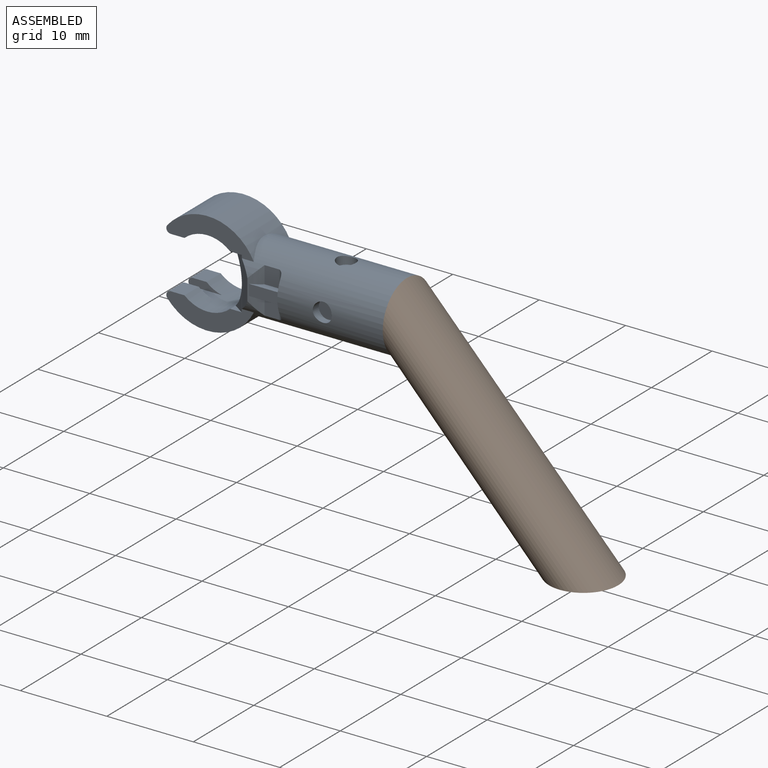
[diagram: assembled view]
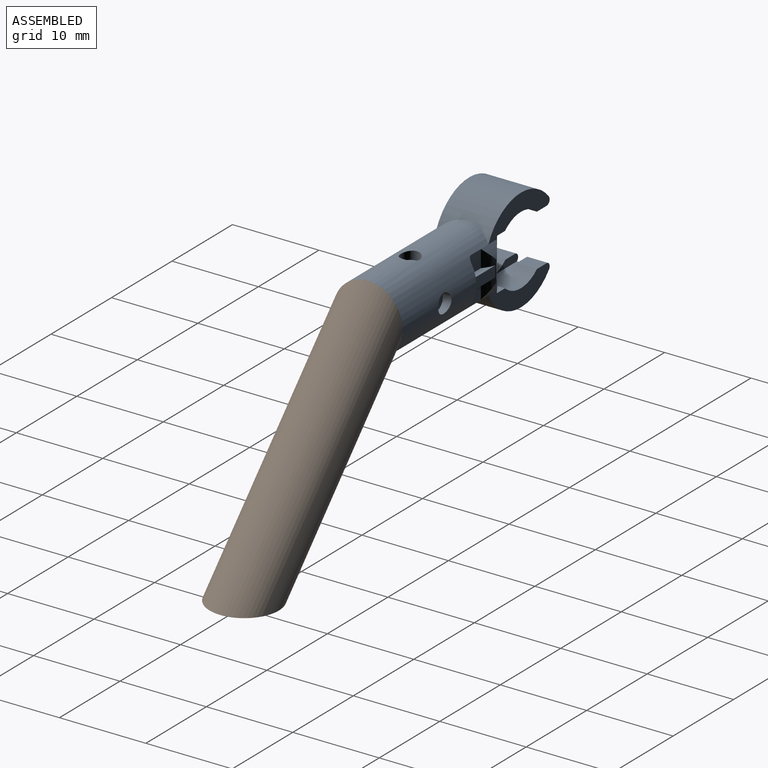
[diagram: assembled view, second angle]
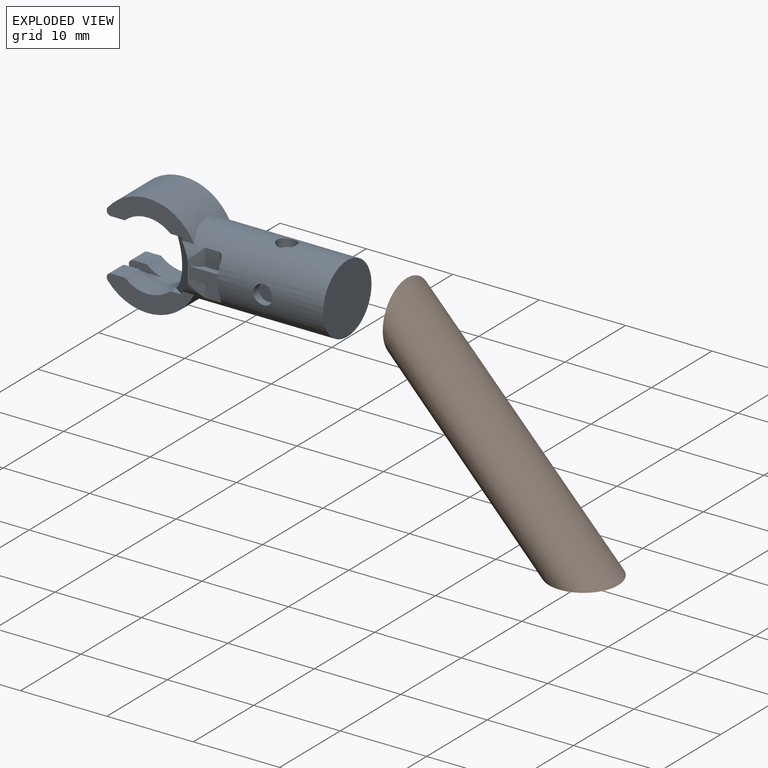
[diagram: exploded view]
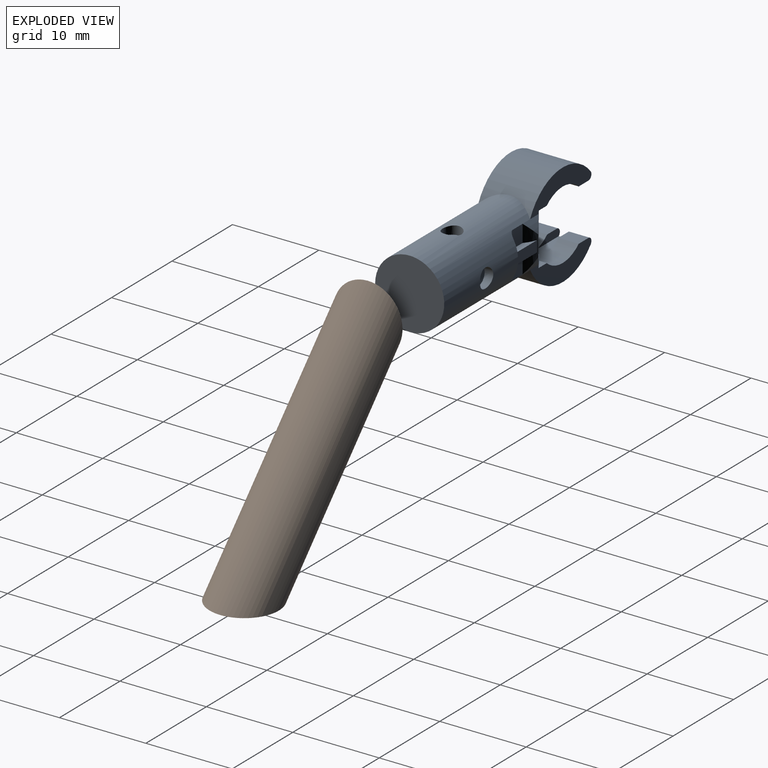
[diagram: exploded view, second angle]
ASSEMBLY  parts=2 mates=2
PART A: 63 faces, bbox 25.7x8x12 mm
  f0: cylinder r=4mm len=17mm, axis (-1,0,0), area 354.3mm2, adj f3,f5,f7,f8,f9,f10,f11,f12
  f1: plane 2.35x1.6mm, normal (0,0,1), area 3.8mm2, adj f2,f4,f11,f29
  f2: cylinder r=4mm len=8mm, axis (0,-1,0), area 97.7mm2, adj f1,f10,f11,f13,f14,f15,f16,f17
  f3: cylinder r=6mm len=10.01mm, axis (0,-1,0), area 65mm2, adj f0,f4,f11,f28,f29,f31,f37,f52
  f4: cylinder r=0.5mm len=2.35mm, axis (0,-1,0), area 2.7mm2, adj f1,f3,f11,f29
  f5: cylinder r=6mm len=10.01mm, axis (0,-1,0), area 65mm2, adj f0,f6,f10,f26,f27,f32,f36,f51
  f6: cylinder r=0.5mm len=2.35mm, axis (0,-1,0), area 2.7mm2, adj f5,f10,f13,f27
  f7: plane 2x1.66mm, normal (0,1,0), area 3.3mm2, adj f0,f8,f18,f24
  f8: cylinder r=0.5mm len=2mm, axis (0,0,1), area 1.4mm2, adj f0,f7,f21,f24
  f9: plane 5.29x0.01mm, normal (-1,0,0), area 0mm2, adj f0,f10,f11,f22
  f10: plane 10.13x6mm, normal (0,1,0), area 18.8mm2, adj f0,f2,f5,f6,f9,f13,f16,f17
  f11: plane 10.13x6mm, normal (0,1,0), area 18.8mm2, adj f0,f1,f2,f3,f4,f9,f14,f15
  f12: plane 8x8mm, normal (1,0,0), area 50.3mm2, adj f0
  f13: plane 2.35x1.6mm, normal (0,0,-1), area 3.8mm2, adj f2,f6,f10,f27
  f14: plane 1.34x0.89mm, normal (0,0,1), area 0.6mm2, adj f2,f11,f15
  f15: plane 2.68x1.34mm, normal (-0.55,0.83,0), area 1.5mm2, adj f2,f11,f14
  f16: plane 1.34x0.89mm, normal (0,0,-1), area 0.6mm2, adj f2,f10,f17
  f17: plane 2.68x1.34mm, normal (-0.55,0.83,0), area 1.5mm2, adj f2,f10,f16
  f18: cylinder r=4mm len=5.27mm, axis (0,0,1), area 4.4mm2, adj f0,f7,f19,f22,f23,f24,f25
  f19: plane 2x1.66mm, normal (0,1,0), area 3.3mm2, adj f0,f18,f20,f23
  f20: cylinder r=0.5mm len=2mm, axis (0,0,1), area 1.4mm2, adj f0,f19,f21,f23
  f21: plane 3.85x0.49mm, normal (-1,0,0), area 0.9mm2, adj f0,f8,f20,f23,f24,f25
  f22: plane 5.27x1.21mm, normal (-0.55,0.83,0), area 5.9mm2, adj f0,f9,f18
  f23: plane 3.46x0.76mm, normal (0,0,1), area 2mm2, adj f18,f19,f20,f21,f25
  f24: plane 3.46x0.76mm, normal (0,0,-1), area 2mm2, adj f7,f8,f18,f21,f25
  f25: plane 3.46x1.27mm, normal (0,1,0), area 4.4mm2, adj f18,f21,f23,f24
  f26: plane 3.67x1.3mm, normal (0,0,-1), area 4.8mm2, adj f2,f5,f27,f51
  f27: plane 3.85x0.9mm, normal (0,-1,0), area 2.4mm2, adj f2,f5,f6,f13,f26
  f28: plane 3.67x1.3mm, normal (0,0,1), area 4.8mm2, adj f2,f3,f29,f52
  f29: plane 3.85x0.9mm, normal (0,-1,0), area 2.4mm2, adj f1,f2,f3,f4,f28
  f30: plane 2.35x1.6mm, normal (0,0,1), area 3.8mm2, adj f2,f31,f37,f52
  f31: cylinder r=0.5mm len=2.35mm, axis (0,1,0), area 2.7mm2, adj f3,f30,f37,f52
  f32: cylinder r=0.5mm len=2.35mm, axis (0,1,0), area 2.7mm2, adj f5,f36,f38,f51
  f33: plane 2x1.66mm, normal (0,-1,0), area 3.3mm2, adj f0,f34,f43,f49
  f34: cylinder r=0.5mm len=2mm, axis (0,0,1), area 1.4mm2, adj f0,f33,f46,f49
  f35: plane 5.29x0.01mm, normal (-1,0,0), area 0mm2, adj f0,f36,f37,f47
  f36: plane 10.13x6mm, normal (0,-1,0), area 18.8mm2, adj f0,f2,f5,f32,f35,f38,f41,f42
  f37: plane 10.13x6mm, normal (0,-1,0), area 18.8mm2, adj f0,f2,f3,f30,f31,f35,f39,f40
  f38: plane 2.35x1.6mm, normal (0,0,-1), area 3.8mm2, adj f2,f32,f36,f51
  f39: plane 1.34x0.89mm, normal (0,0,1), area 0.6mm2, adj f2,f37,f40
  f40: plane 2.68x1.34mm, normal (-0.55,-0.83,0), area 1.5mm2, adj f2,f37,f39
  f41: plane 1.34x0.89mm, normal (0,0,-1), area 0.6mm2, adj f2,f36,f42
  f42: plane 2.68x1.34mm, normal (-0.55,-0.83,0), area 1.5mm2, adj f2,f36,f41
  f43: cylinder r=4mm len=5.27mm, axis (0,0,1), area 4.4mm2, adj f0,f33,f44,f47,f48,f49,f50
  f44: plane 2x1.66mm, normal (0,-1,0), area 3.3mm2, adj f0,f43,f45,f48
  f45: cylinder r=0.5mm len=2mm, axis (0,0,1), area 1.4mm2, adj f0,f44,f46,f48
  f46: plane 3.85x0.49mm, normal (-1,0,0), area 0.9mm2, adj f0,f34,f45,f48,f49,f50
  f47: plane 5.27x1.21mm, normal (-0.55,-0.83,0), area 5.9mm2, adj f0,f35,f43
  f48: plane 3.46x0.76mm, normal (0,0,1), area 2mm2, adj f43,f44,f45,f46,f50
  f49: plane 3.46x0.76mm, normal (0,0,-1), area 2mm2, adj f33,f34,f43,f46,f50
  f50: plane 3.46x1.27mm, normal (0,-1,0), area 4.4mm2, adj f43,f46,f48,f49
  f51: plane 3.85x0.9mm, normal (0,1,0), area 2.4mm2, adj f2,f5,f26,f32,f38
  f52: plane 3.85x0.9mm, normal (0,1,0), area 2.4mm2, adj f2,f3,f28,f30,f31
  f53: cylinder r=1mm len=2mm, axis (1,0,0), area 5.9mm2, adj f2,f54
  f54: plane 2x2mm, normal (-1,0,0), area 3.1mm2, adj f53
  f55: plane 2.2x2.2mm, normal (0,-1,0), area 3.8mm2, adj f56
  f56: cylinder r=1.1mm len=2.2mm, axis (0,1,0), area 6.4mm2, adj f0,f55
  f57: plane 2.2x2.2mm, normal (0,0,-1), area 3.8mm2, adj f58
  f58: cylinder r=1.1mm len=2.2mm, axis (0,0,1), area 6.4mm2, adj f0,f57
  f59: plane 2.2x2.2mm, normal (0,1,0), area 3.8mm2, adj f60
  f60: cylinder r=1.1mm len=2.2mm, axis (0,-1,0), area 6.4mm2, adj f0,f59
  f61: plane 2.2x2.2mm, normal (0,0,1), area 3.8mm2, adj f62
  f62: cylinder r=1.1mm len=2.2mm, axis (0,0,-1), area 6.4mm2, adj f0,f61
PART B: 3 faces, bbox 24.4x8x25.6 mm
  f0: plane 8x8mm, normal (-1,0,0), area 50.3mm2, adj f2
  f1: plane 8x8mm, normal (0,0,-1), area 50.3mm2, adj f2
  f2: bspline ~25.62x24.44mm, area 642.8mm2, adj f0,f1
PLACE A t=(-27.52,0.33,21.8)mm
PLACE B t=(-10.52,0.33,0.19)mm
MATE cylindrical B.f0 <-> A.f0  axis (-1,0,0) through (-10.52,0.33,21.8)mm
MATE cylindrical B.f0 <-> A.f0  axis (-1,0,0) through (-10.52,0.33,21.8)mm
